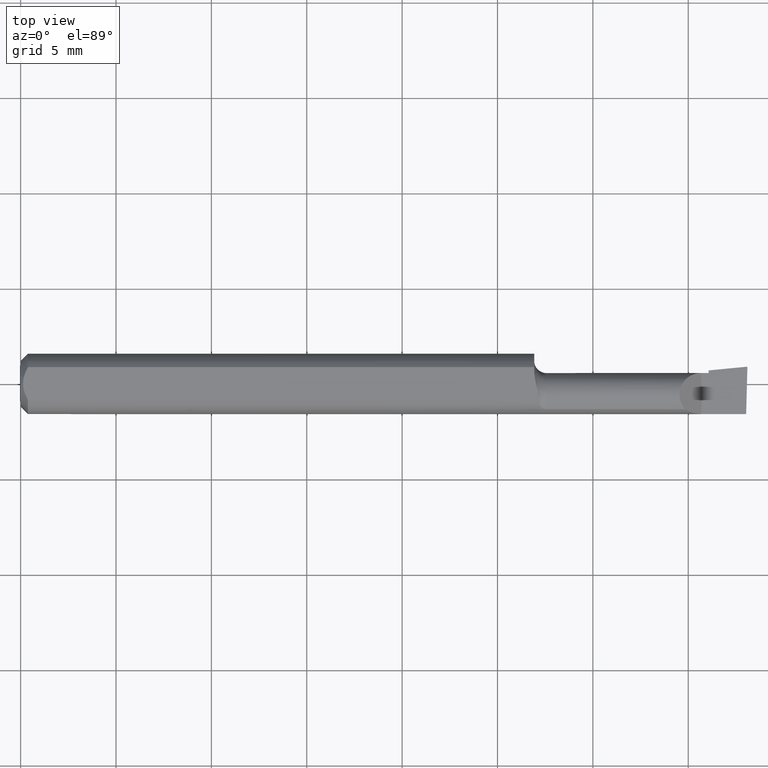
[diagram: clean part render]
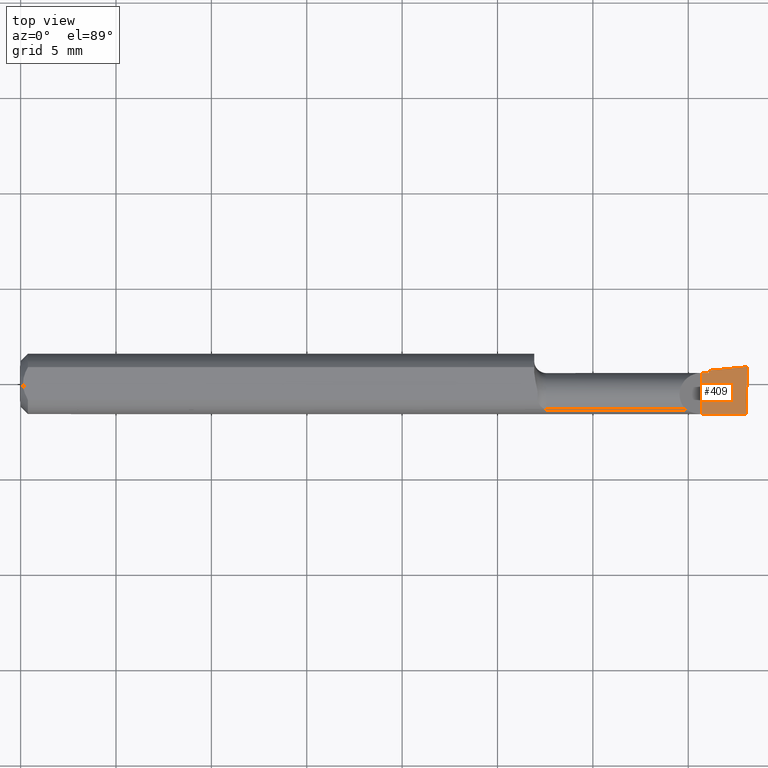
[diagram: same view with one face highlighted and labeled with its STEP entity id]
A machine part, top view. The second image highlights one B-rep face of the part: STEP entity #409.
In plain terms, the highlighted planar face has unit normal (-0, 0, -1).
Its self-contained STEP definition (entity closure, byte-faithful):
#19 = VECTOR ( 'NONE', #244, 39.37007874015748854 ) ;
#27 = VECTOR ( 'NONE', #481, 39.37007874015748143 ) ;
#39 = CARTESIAN_POINT ( 'NONE',  ( 1.420000000000000151, 0.02265000000000000346, 1.836970198721031660E-16 ) ) ;
#41 = CARTESIAN_POINT ( 'NONE',  ( 1.497433779686218935, -0.06235000000000005121, 3.231995301756471648E-19 ) ) ;
#49 = CARTESIAN_POINT ( 'NONE',  ( 1.420000000000000151, -0.2500000000000000555, 9.797174393178828616E-18 ) ) ;
#63 = LINE ( 'NONE', #49, #592 ) ;
#69 = CARTESIAN_POINT ( 'NONE',  ( 2.249639673992788601E-32, -0.06234999999999999570, 1.836970198721030427E-16 ) ) ;
#112 = CARTESIAN_POINT ( 'NONE',  ( 1.492525117049605665, -0.2498042633013223268, 9.154091479201563202E-19 ) ) ;
#114 = DIRECTION ( 'NONE',  ( 0.9953961983671786307, 0.09584575252022466130, -1.219008768213809603E-16 ) ) ;
#119 = AXIS2_PLACEMENT_3D ( 'NONE', #498, #224, #134 ) ;
#126 = CARTESIAN_POINT ( 'NONE',  ( 1.405000000000000249, 0.02264999999999992714, 1.163414459189985436E-17 ) ) ;
#131 = FACE_OUTER_BOUND ( 'NONE', #405, .T. ) ;
#132 = VECTOR ( 'NONE', #166, 39.37007874015748143 ) ;
#134 = DIRECTION ( 'NONE',  ( -1.000000000000000000, 0.0000000000000000000, 1.224646799147353947E-16 ) ) ;
#140 = EDGE_CURVE ( 'NONE', #411, #179, #339, .T. ) ;
#142 = VECTOR ( 'NONE', #416, 39.37007874015748143 ) ;
#149 = CARTESIAN_POINT ( 'NONE',  ( 1.405000000000000249, -0.2500000000000000555, 1.163414459189985436E-17 ) ) ;
#157 = CARTESIAN_POINT ( 'NONE',  ( 1.500000000000000222, 0.03565000000000797392, 2.609848571056580909E-14 ) ) ;
#159 = ORIENTED_EDGE ( 'NONE', *, *, #585, .F. ) ;
#166 = DIRECTION ( 'NONE',  ( 1.000000000000000000, 5.691349986800549142E-18, 0.0000000000000000000 ) ) ;
#167 = EDGE_CURVE ( 'NONE', #477, #179, #295, .T. ) ;
#178 = PLANE ( 'NONE',  #119 ) ;
#179 = VERTEX_POINT ( 'NONE', #157 ) ;
#211 = VERTEX_POINT ( 'NONE', #578 ) ;
#216 = VECTOR ( 'NONE', #114, 39.37007874015748854 ) ;
#223 = CARTESIAN_POINT ( 'NONE',  ( 1.420000000000000151, 0.02794687614419801361, 1.835460370743176819E-16 ) ) ;
#224 = DIRECTION ( 'NONE',  ( -1.224646799147353947E-16, 0.0000000000000000000, -1.000000000000000000 ) ) ;
#244 = DIRECTION ( 'NONE',  ( 0.02617694830784732946, 0.9996573249755579260, -3.158139334220721443E-18 ) ) ;
#256 = ORIENTED_EDGE ( 'NONE', *, *, #553, .F. ) ;
#258 = VERTEX_POINT ( 'NONE', #126 ) ;
#269 = ORIENTED_EDGE ( 'NONE', *, *, #306, .F. ) ;
#295 = LINE ( 'NONE', #112, #19 ) ;
#306 = EDGE_CURVE ( 'NONE', #258, #511, #446, .T. ) ;
#337 = EDGE_CURVE ( 'NONE', #477, #211, #472, .T. ) ;
#338 = CARTESIAN_POINT ( 'NONE',  ( 0.8971276994979847652, -0.02239999999999999977, 7.383056331043944924E-17 ) ) ;
#339 = LINE ( 'NONE', #338, #216 ) ;
#340 = ORIENTED_EDGE ( 'NONE', *, *, #167, .T. ) ;
#392 = CARTESIAN_POINT ( 'NONE',  ( -2.563953169053420290E-19, 0.02264999999999996183, 1.836970198721030427E-16 ) ) ;
#405 = EDGE_LOOP ( 'NONE', ( #479, #340, #582, #159, #269, #256 ) ) ;
#409 = ADVANCED_FACE ( 'NONE', ( #131 ), #178, .F. ) ;
#411 = VERTEX_POINT ( 'NONE', #223 ) ;
#416 = DIRECTION ( 'NONE',  ( -0.0000000000000000000, 1.000000000000000000, -0.0000000000000000000 ) ) ;
#446 = LINE ( 'NONE', #392, #132 ) ;
#472 = LINE ( 'NONE', #69, #27 ) ;
#477 = VERTEX_POINT ( 'NONE', #41 ) ;
#479 = ORIENTED_EDGE ( 'NONE', *, *, #337, .F. ) ;
#481 = DIRECTION ( 'NONE',  ( -1.000000000000000000, -0.0000000000000000000, -0.0000000000000000000 ) ) ;
#483 = LINE ( 'NONE', #149, #142 ) ;
#498 = CARTESIAN_POINT ( 'NONE',  ( 1.500000000000000222, -0.2500000000000000555, 0.0000000000000000000 ) ) ;
#511 = VERTEX_POINT ( 'NONE', #39 ) ;
#553 = EDGE_CURVE ( 'NONE', #211, #258, #483, .T. ) ;
#569 = DIRECTION ( 'NONE',  ( -5.691349986800549142E-18, 1.000000000000000000, 6.969893544162626646E-34 ) ) ;
#578 = CARTESIAN_POINT ( 'NONE',  ( 1.405000000000000249, -0.06235000000000005121, 1.163414459189985436E-17 ) ) ;
#582 = ORIENTED_EDGE ( 'NONE', *, *, #140, .F. ) ;
#585 = EDGE_CURVE ( 'NONE', #511, #411, #63, .T. ) ;
#592 = VECTOR ( 'NONE', #569, 39.37007874015748143 ) ;